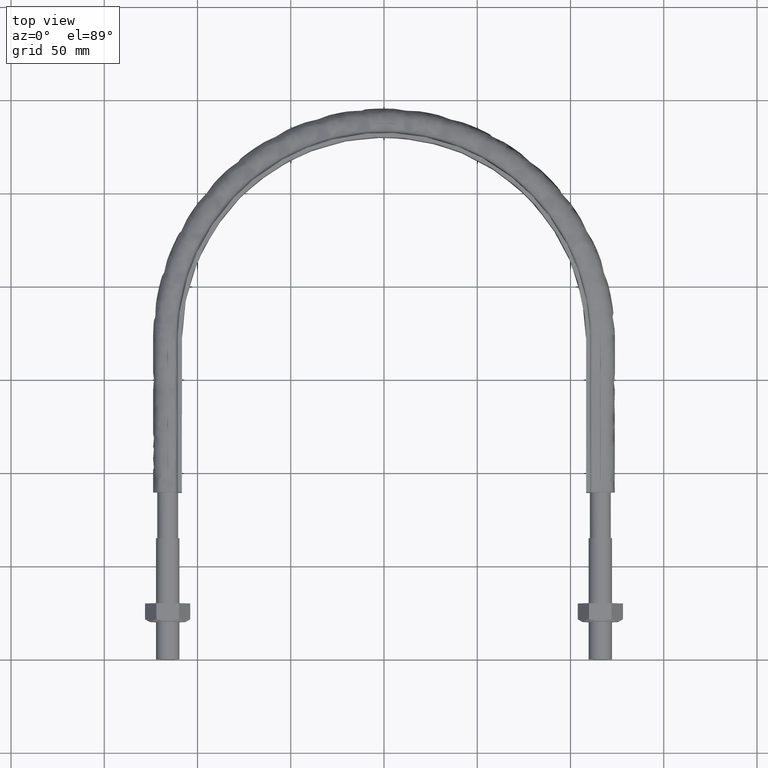
[diagram: clean part render]
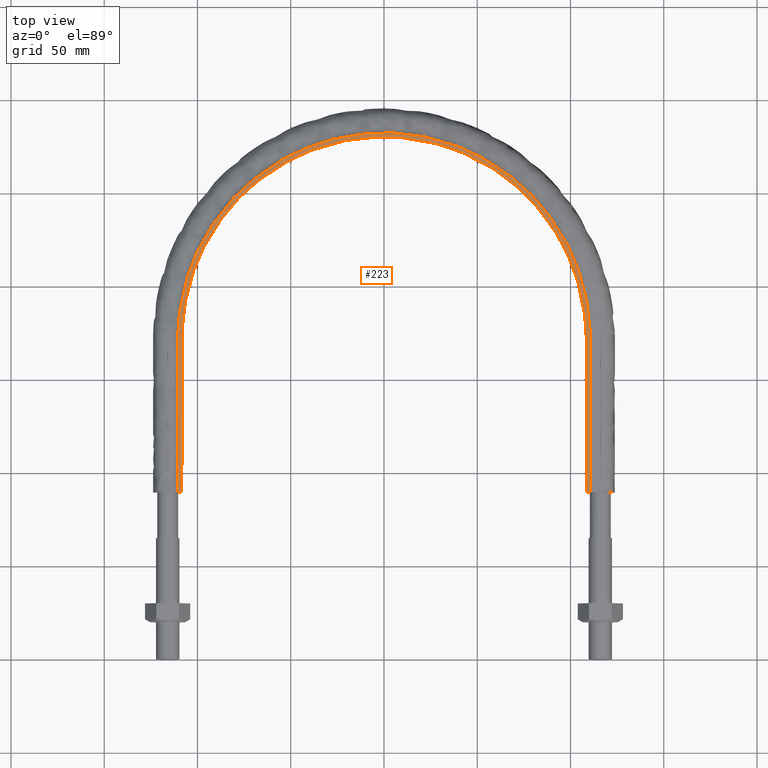
[diagram: same view with one face highlighted and labeled with its STEP entity id]
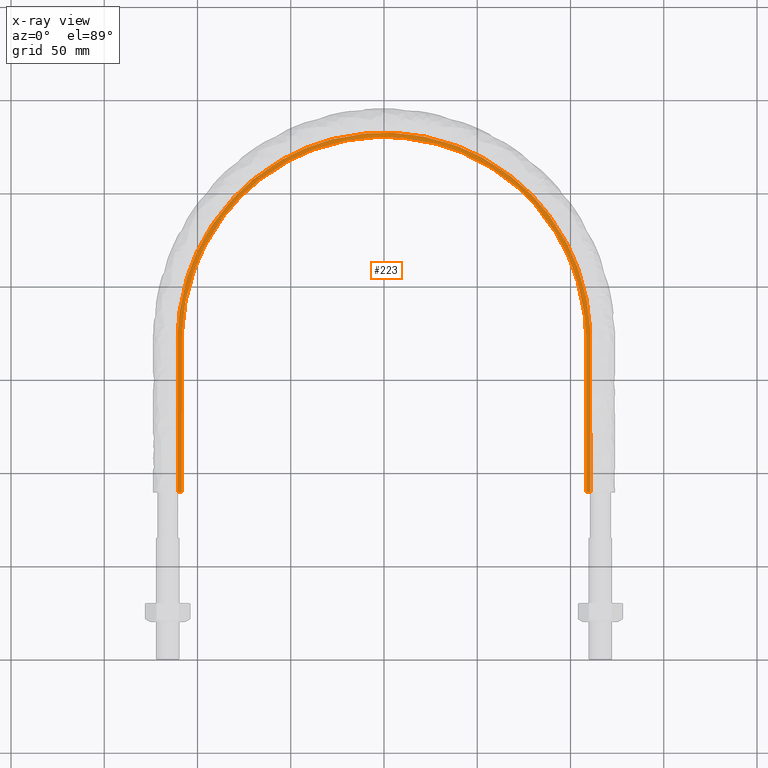
[diagram: x-ray of the same camera — body ghosted, the highlighted face saturated]
A machine part, top view. The second image highlights one B-rep face of the part: STEP entity #223.
The next image is the same camera in x-ray: the body ghosted, the highlighted face saturated — about 0% of this face is hidden behind the body in this view.
In plain terms, the highlighted planar face has unit normal (0, 0, 1).
Its self-contained STEP definition (entity closure, byte-faithful):
#223 = ADVANCED_FACE( '', ( #270 ), #271, .T. );
#270 = FACE_OUTER_BOUND( '', #373, .T. );
#271 = PLANE( '', #374 );
#373 = EDGE_LOOP( '', ( #1408, #1409, #1410, #1411 ) );
#374 = AXIS2_PLACEMENT_3D( '', #1412, #1413, #1414 );
#1408 = ORIENTED_EDGE( '', *, *, #1655, .T. );
#1409 = ORIENTED_EDGE( '', *, *, #1665, .T. );
#1410 = ORIENTED_EDGE( '', *, *, #1664, .T. );
#1411 = ORIENTED_EDGE( '', *, *, #1666, .F. );
#1412 = CARTESIAN_POINT( '', ( 150.000000000000, 389.500000000000, 15.0000000000000 ) );
#1413 = DIRECTION( '', ( 0.000000000000000, 0.000000000000000, 1.00000000000000 ) );
#1414 = DIRECTION( '', ( 1.22460635382238E-016, 1.00000000000000, 0.000000000000000 ) );
#1655 = EDGE_CURVE( '', #1740, #1738, #1741, .T. );
#1664 = EDGE_CURVE( '', #1752, #1754, #1756, .T. );
#1665 = EDGE_CURVE( '', #1738, #1752, #1757, .T. );
#1666 = EDGE_CURVE( '', #1740, #1754, #1758, .F. );
#1738 = VERTEX_POINT( '', #1896 );
#1740 = VERTEX_POINT( '', #1899 );
#1741 = LINE( '', #1900, #1901 );
#1752 = VERTEX_POINT( '', #1986 );
#1754 = VERTEX_POINT( '', #1989 );
#1756 = LINE( '', #2021, #2022 );
#1757 = B_SPLINE_CURVE_WITH_KNOTS( '', 3, ( #2023, #2024, #2025, #2026, #2027, #2028, #2029, #2030, #2031, #2032, #2033, #2034, #2035, #2036, #2037, #2038, #2039 ), .UNSPECIFIED., .F., .F., ( 4, 3, 1, 1, 1, 1, 1, 1, 1, 3, 4 ), ( -10.0000000000000, -9.00000000000000, -8.00000000000000, -7.00000000000000, -6.00000000000000, -5.00000000000000, -4.00000000000000, -3.00000000000000, -2.00000000000000, -1.00000000000000, 0.000000000000000 ), .UNSPECIFIED. );
#1758 = B_SPLINE_CURVE_WITH_KNOTS( '', 3, ( #2040, #2041, #2042, #2043, #2044, #2045, #2046, #2047, #2048, #2049, #2050, #2051, #2052, #2053, #2054, #2055, #2056 ), .UNSPECIFIED., .F., .F., ( 4, 3, 1, 1, 1, 1, 1, 1, 1, 3, 4 ), ( 0.000000000000000, 1.00000000000000, 2.00000000000000, 3.00000000000000, 4.00000000000000, 5.00000000000000, 6.00000000000000, 7.00000000000000, 8.00000000000000, 9.00000000000000, 10.0000000000000 ), .UNSPECIFIED. );
#1896 = CARTESIAN_POINT( '', ( -108.400000000000, 89.5000000000003, 15.0000000000000 ) );
#1899 = CARTESIAN_POINT( '', ( -110.600000000000, 89.5000000000003, 15.0000000000000 ) );
#1900 = CARTESIAN_POINT( '', ( -150.000000000000, 89.5000000000003, 15.0000000000000 ) );
#1901 = VECTOR( '', #2386, 1000.00000000000 );
#1986 = CARTESIAN_POINT( '', ( 108.400000000000, 89.5000000000003, 15.0000000000000 ) );
#1989 = CARTESIAN_POINT( '', ( 110.600000000000, 89.5000000000003, 15.0000000000000 ) );
#2021 = CARTESIAN_POINT( '', ( -150.000000000000, 89.5000000000003, 15.0000000000000 ) );
#2022 = VECTOR( '', #2390, 1000.00000000000 );
#2023 = CARTESIAN_POINT( '', ( -108.400000000000, 89.5000000000001, 15.0000000000001 ) );
#2024 = CARTESIAN_POINT( '', ( -108.400000000000, 116.866666666667, 15.0000000000001 ) );
#2025 = CARTESIAN_POINT( '', ( -108.400000000000, 144.233333333333, 15.0000000000001 ) );
#2026 = CARTESIAN_POINT( '', ( -108.400000000000, 171.600000000000, 15.0000000000001 ) );
#2027 = CARTESIAN_POINT( '', ( -108.400000000000, 185.774498518656, 15.0000000000001 ) );
#2028 = CARTESIAN_POINT( '', ( -102.755814879494, 214.168943035043, 15.0000000000001 ) );
#2029 = CARTESIAN_POINT( '', ( -78.6458958671129, 250.244256009620, 15.0000000000001 ) );
#2030 = CARTESIAN_POINT( '', ( -42.5628521357854, 274.356283410206, 15.0000000000001 ) );
#2031 = CARTESIAN_POINT( '', ( 7.62679078902217E-014, 282.821858294897, 15.0000000000001 ) );
#2032 = CARTESIAN_POINT( '', ( 42.5628521357854, 274.356283410206, 15.0000000000001 ) );
#2033 = CARTESIAN_POINT( '', ( 78.6458958671129, 250.244256009621, 15.0000000000001 ) );
#2034 = CARTESIAN_POINT( '', ( 102.755814879494, 214.168943035043, 15.0000000000001 ) );
#2035 = CARTESIAN_POINT( '', ( 108.400000000000, 185.774498518656, 15.0000000000001 ) );
#2036 = CARTESIAN_POINT( '', ( 108.400000000000, 171.600000000000, 15.0000000000001 ) );
#2037 = CARTESIAN_POINT( '', ( 108.400000000000, 144.233333333333, 15.0000000000001 ) );
#2038 = CARTESIAN_POINT( '', ( 108.400000000000, 116.866666666667, 15.0000000000001 ) );
#2039 = CARTESIAN_POINT( '', ( 108.400000000000, 89.5000000000000, 15.0000000000001 ) );
#2040 = CARTESIAN_POINT( '', ( 110.600000000000, 89.5000000000000, 15.0000000000000 ) );
#2041 = CARTESIAN_POINT( '', ( 110.600000000000, 116.866666666667, 15.0000000000000 ) );
#2042 = CARTESIAN_POINT( '', ( 110.600000000000, 144.233333333333, 15.0000000000000 ) );
#2043 = CARTESIAN_POINT( '', ( 110.600000000000, 171.600000000000, 15.0000000000000 ) );
#2044 = CARTESIAN_POINT( '', ( 110.600000000000, 186.066236657480, 15.0000000000000 ) );
#2045 = CARTESIAN_POINT( '', ( 104.841264996974, 215.031001602308, 15.0000000000000 ) );
#2046 = CARTESIAN_POINT( '', ( 80.2420302850802, 251.840865123178, 15.0000000000000 ) );
#2047 = CARTESIAN_POINT( '', ( 43.4266738580984, 276.441597900375, 15.0000000000000 ) );
#2048 = CARTESIAN_POINT( '', ( 7.30748965663105E-014, 285.079201049813, 15.0000000000000 ) );
#2049 = CARTESIAN_POINT( '', ( -43.4266738580984, 276.441597900375, 15.0000000000000 ) );
#2050 = CARTESIAN_POINT( '', ( -80.2420302850801, 251.840865123178, 15.0000000000000 ) );
#2051 = CARTESIAN_POINT( '', ( -104.841264996974, 215.031001602308, 15.0000000000000 ) );
#2052 = CARTESIAN_POINT( '', ( -110.600000000000, 186.066236657480, 15.0000000000000 ) );
#2053 = CARTESIAN_POINT( '', ( -110.600000000000, 171.600000000000, 15.0000000000000 ) );
#2054 = CARTESIAN_POINT( '', ( -110.600000000000, 144.233333333333, 15.0000000000000 ) );
#2055 = CARTESIAN_POINT( '', ( -110.600000000000, 116.866666666667, 15.0000000000000 ) );
#2056 = CARTESIAN_POINT( '', ( -110.600000000000, 89.5000000000001, 15.0000000000000 ) );
#2386 = DIRECTION( '', ( 1.00000000000000, -1.22460635382238E-016, 0.000000000000000 ) );
#2390 = DIRECTION( '', ( 1.00000000000000, -1.22460635382238E-016, 0.000000000000000 ) );